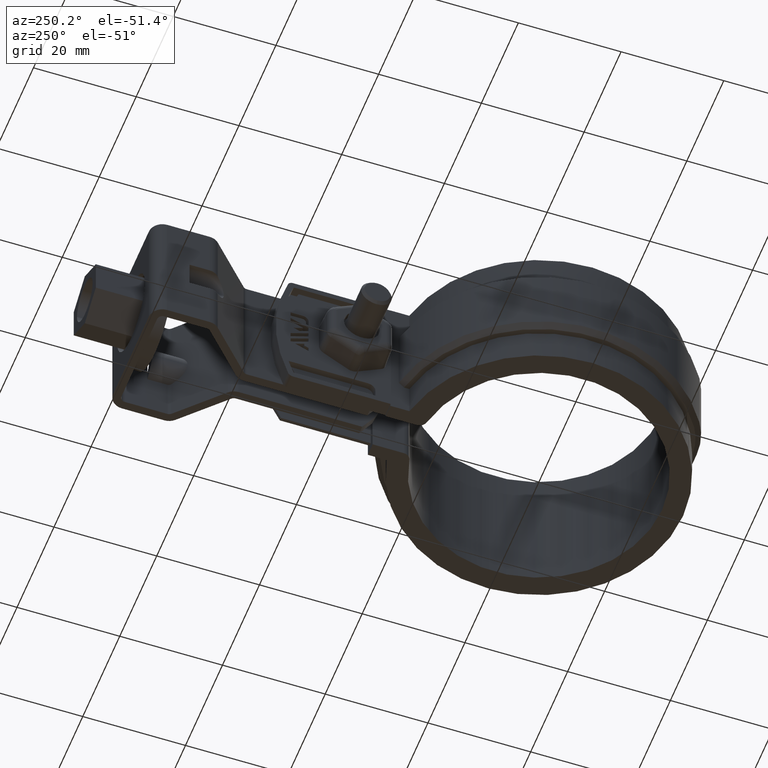
[diagram: clean part render]
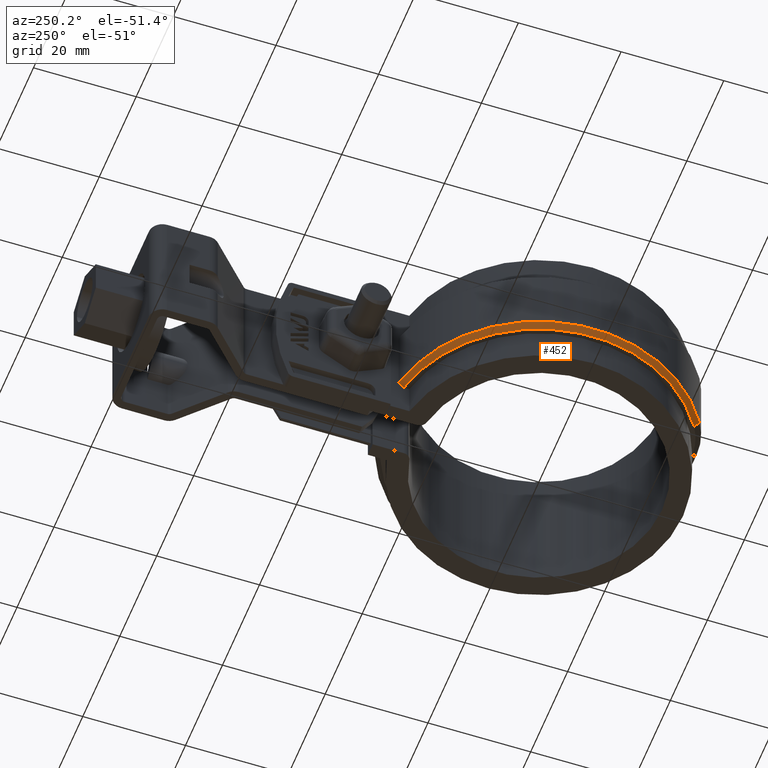
[diagram: same view with one face highlighted and labeled with its STEP entity id]
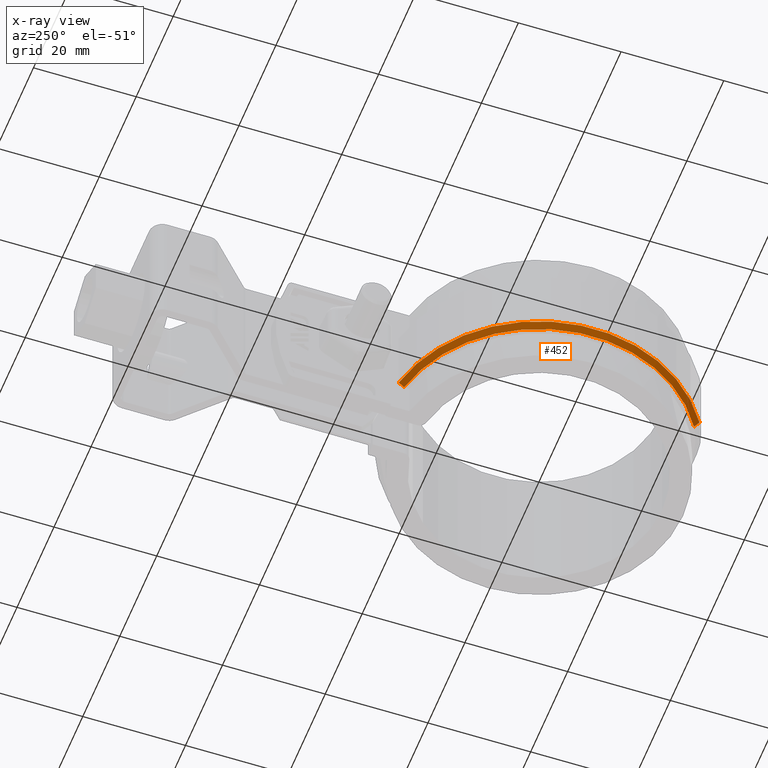
[diagram: x-ray of the same camera — body ghosted, the highlighted face saturated]
A machine part, auxiliary view. The second image highlights one B-rep face of the part: STEP entity #452.
The next image is the same camera in x-ray: the body ghosted, the highlighted face saturated — about 0% of this face is hidden behind the body in this view.
In plain terms, the highlighted conical surface has half-angle 45 deg.
Its self-contained STEP definition (entity closure, byte-faithful):
#452 = ADVANCED_FACE( '', ( #896 ), #897, .T. );
#896 = FACE_OUTER_BOUND( '', #2162, .T. );
#897 = CONICAL_SURFACE( '', #2163, 30.0950000000000, 0.785398163397448 );
#2162 = EDGE_LOOP( '', ( #4639, #4640, #4641, #4642 ) );
#2163 = AXIS2_PLACEMENT_3D( '', #4643, #4644, #4645 );
#4639 = ORIENTED_EDGE( '', *, *, #7478, .F. );
#4640 = ORIENTED_EDGE( '', *, *, #7479, .F. );
#4641 = ORIENTED_EDGE( '', *, *, #7480, .F. );
#4642 = ORIENTED_EDGE( '', *, *, #7311, .F. );
#4643 = CARTESIAN_POINT( '', ( 8.67361737988404E-016, 0.000000000000000, -19.0000000000000 ) );
#4644 = DIRECTION( '', ( 0.000000000000000, 0.000000000000000, 1.00000000000000 ) );
#4645 = DIRECTION( '', ( 1.00000000000000, 0.000000000000000, 0.000000000000000 ) );
#7311 = EDGE_CURVE( '', #8397, #8399, #8400, .T. );
#7478 = EDGE_CURVE( '', #8690, #8397, #8691, .F. );
#7479 = EDGE_CURVE( '', #8692, #8690, #8693, .T. );
#7480 = EDGE_CURVE( '', #8399, #8692, #8694, .T. );
#8397 = VERTEX_POINT( '', #10885 );
#8399 = VERTEX_POINT( '', #10888 );
#8400 = CIRCLE( '', #10889, 30.0950000000000 );
#8690 = VERTEX_POINT( '', #11997 );
#8691 = B_SPLINE_CURVE_WITH_KNOTS( '', 3, ( #11998, #11999, #12000, #12001 ), .UNSPECIFIED., .F., .F., ( 4, 4 ), ( 707.064662971534, 707.066092797482 ), .UNSPECIFIED. );
#8692 = VERTEX_POINT( '', #12002 );
#8693 = CIRCLE( '', #12003, 29.0950000000000 );
#8694 = LINE( '', #12004, #12005 );
#10885 = CARTESIAN_POINT( '', ( -6.09999999999999, 29.4703075145137, -19.0000000000000 ) );
#10888 = CARTESIAN_POINT( '', ( -15.9728671526465, -25.5064019399818, -19.0000000000000 ) );
#10889 = AXIS2_PLACEMENT_3D( '', #13823, #13824, #13825 );
#11997 = CARTESIAN_POINT( '', ( -6.09999999999999, 28.4483571581911, -20.0000000000000 ) );
#11998 = CARTESIAN_POINT( '', ( -6.09999999999999, 29.4703075145245, -18.9999999999893 ) );
#11999 = CARTESIAN_POINT( '', ( -6.09999999999999, 29.1297801164766, -19.3334589512301 ) );
#12000 = CARTESIAN_POINT( '', ( -6.09999999999999, 28.7891343087320, -19.6667966973727 ) );
#12001 = CARTESIAN_POINT( '', ( -6.09999999999999, 28.4483571581938, -19.9999999999973 ) );
#12002 = CARTESIAN_POINT( '', ( -15.4421189501993, -24.6588723855714, -20.0000000000000 ) );
#12003 = AXIS2_PLACEMENT_3D( '', #13996, #13997, #13998 );
#12004 = CARTESIAN_POINT( '', ( -15.9728671526465, -25.5064019399818, -19.0000000000000 ) );
#12005 = VECTOR( '', #13999, 1000.00000000000 );
#13823 = CARTESIAN_POINT( '', ( 8.67361737988404E-016, 0.000000000000000, -19.0000000000000 ) );
#13824 = DIRECTION( '', ( 0.000000000000000, 0.000000000000000, 1.00000000000000 ) );
#13825 = DIRECTION( '', ( 1.00000000000000, 0.000000000000000, 0.000000000000000 ) );
#13996 = CARTESIAN_POINT( '', ( 8.67361737988404E-016, 0.000000000000000, -20.0000000000000 ) );
#13997 = DIRECTION( '', ( 0.000000000000000, 0.000000000000000, -1.00000000000000 ) );
#13998 = DIRECTION( '', ( -1.00000000000000, 0.000000000000000, 0.000000000000000 ) );
#13999 = DIRECTION( '', ( 0.375295653052938, 0.599293895179626, -0.707106781186548 ) );